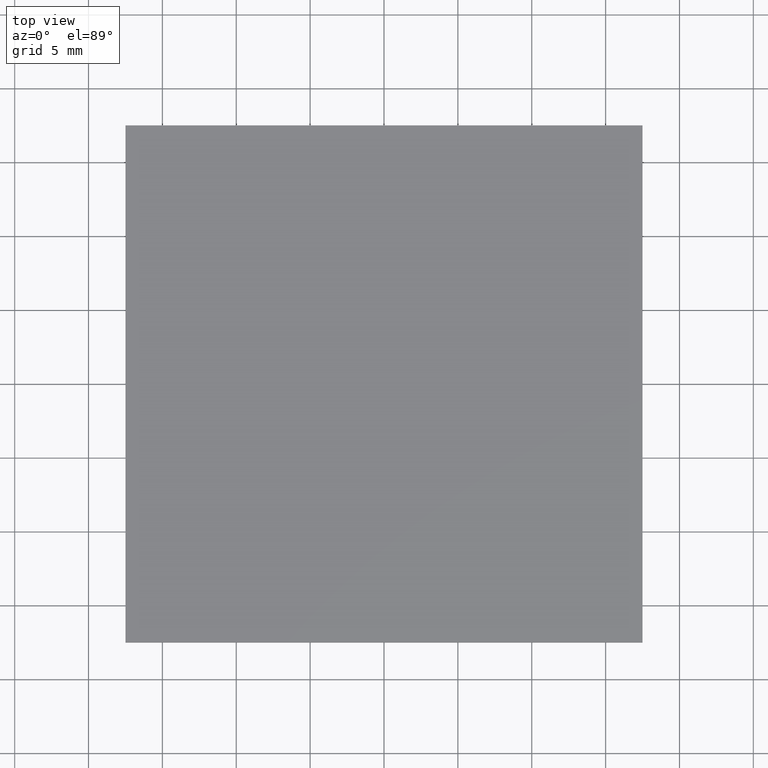
[diagram: clean part render]
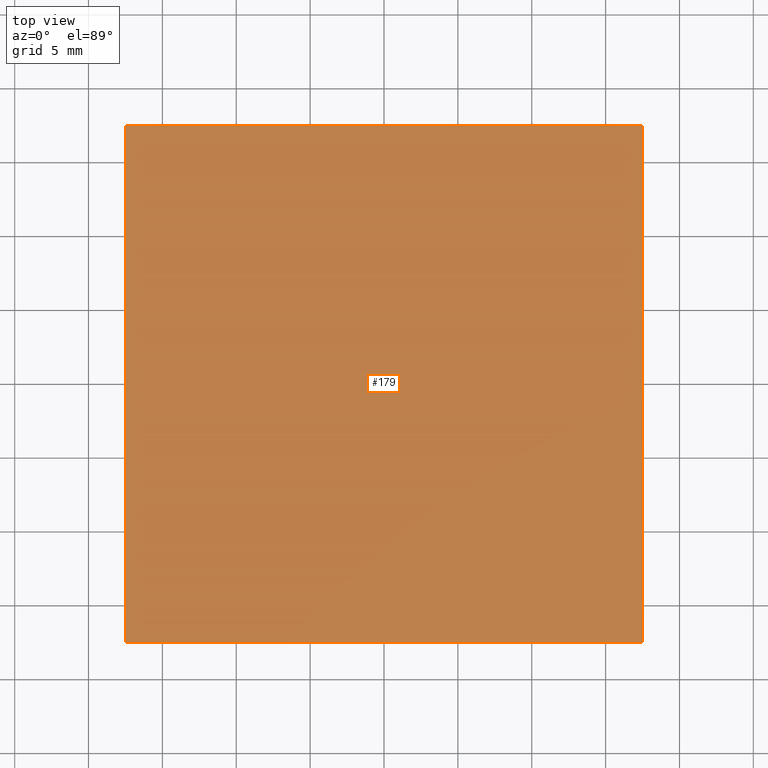
[diagram: same view with one face highlighted and labeled with its STEP entity id]
A machine part, top view. The second image highlights one B-rep face of the part: STEP entity #179.
In plain terms, the highlighted planar face has unit normal (0, 0, -1).
Its self-contained STEP definition (entity closure, byte-faithful):
#24 = VECTOR ( 'NONE', #161, 1000.000000000000000 ) ;
#31 = LINE ( 'NONE', #99, #158 ) ;
#34 = CARTESIAN_POINT ( 'NONE',  ( -17.49999999999999645, 17.50000000000000000, 1.100000000000000089 ) ) ;
#50 = LINE ( 'NONE', #196, #24 ) ;
#51 = DIRECTION ( 'NONE',  ( -0.000000000000000000, -1.000000000000000000, -0.000000000000000000 ) ) ;
#52 = DIRECTION ( 'NONE',  ( -1.000000000000000000, -0.000000000000000000, -0.000000000000000000 ) ) ;
#64 = CARTESIAN_POINT ( 'NONE',  ( -17.49999999999999645, -17.49999999999999645, 1.100000000000000089 ) ) ;
#65 = DIRECTION ( 'NONE',  ( -1.000000000000000000, 0.000000000000000000, -0.000000000000000000 ) ) ;
#66 = FACE_OUTER_BOUND ( 'NONE', #210, .T. ) ;
#75 = VERTEX_POINT ( 'NONE', #227 ) ;
#81 = ORIENTED_EDGE ( 'NONE', *, *, #115, .T. ) ;
#82 = CARTESIAN_POINT ( 'NONE',  ( -17.49999999999999645, -17.49999999999999645, 1.100000000000000089 ) ) ;
#91 = VERTEX_POINT ( 'NONE', #64 ) ;
#92 = ORIENTED_EDGE ( 'NONE', *, *, #169, .T. ) ;
#94 = ORIENTED_EDGE ( 'NONE', *, *, #151, .T. ) ;
#99 = CARTESIAN_POINT ( 'NONE',  ( -17.49999999999999645, 17.50000000000000000, 1.100000000000000089 ) ) ;
#115 = EDGE_CURVE ( 'NONE', #91, #172, #215, .T. ) ;
#120 = DIRECTION ( 'NONE',  ( 1.000000000000000000, 0.000000000000000000, 0.000000000000000000 ) ) ;
#121 = VECTOR ( 'NONE', #120, 1000.000000000000000 ) ;
#143 = CARTESIAN_POINT ( 'NONE',  ( 0.000000000000000000, 0.000000000000000000, 1.100000000000000089 ) ) ;
#151 = EDGE_CURVE ( 'NONE', #172, #75, #50, .T. ) ;
#158 = VECTOR ( 'NONE', #52, 1000.000000000000000 ) ;
#159 = VERTEX_POINT ( 'NONE', #34 ) ;
#161 = DIRECTION ( 'NONE',  ( 0.000000000000000000, 1.000000000000000000, 0.000000000000000000 ) ) ;
#163 = CARTESIAN_POINT ( 'NONE',  ( -17.49999999999999645, -17.49999999999999645, 1.100000000000000089 ) ) ;
#164 = DIRECTION ( 'NONE',  ( 0.000000000000000000, 0.000000000000000000, -1.000000000000000000 ) ) ;
#169 = EDGE_CURVE ( 'NONE', #159, #91, #201, .T. ) ;
#172 = VERTEX_POINT ( 'NONE', #178 ) ;
#178 = CARTESIAN_POINT ( 'NONE',  ( 17.50000000000000355, -17.49999999999999645, 1.100000000000000089 ) ) ;
#179 = ADVANCED_FACE ( 'NONE', ( #66 ), #236, .F. ) ;
#189 = ORIENTED_EDGE ( 'NONE', *, *, #206, .T. ) ;
#190 = VECTOR ( 'NONE', #51, 1000.000000000000000 ) ;
#196 = CARTESIAN_POINT ( 'NONE',  ( 17.50000000000000355, -17.49999999999999645, 1.100000000000000089 ) ) ;
#201 = LINE ( 'NONE', #163, #190 ) ;
#206 = EDGE_CURVE ( 'NONE', #75, #159, #31, .T. ) ;
#210 = EDGE_LOOP ( 'NONE', ( #94, #189, #92, #81 ) ) ;
#215 = LINE ( 'NONE', #82, #121 ) ;
#227 = CARTESIAN_POINT ( 'NONE',  ( 17.50000000000000355, 17.50000000000000000, 1.100000000000000089 ) ) ;
#233 = AXIS2_PLACEMENT_3D ( 'NONE', #143, #164, #65 ) ;
#236 = PLANE ( 'NONE',  #233 ) ;